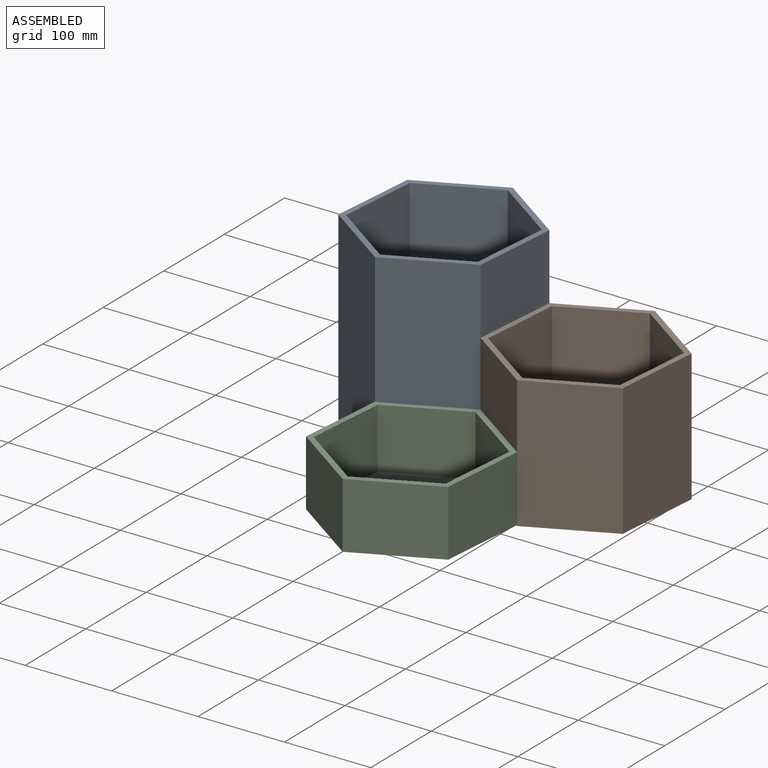
[diagram: assembled view]
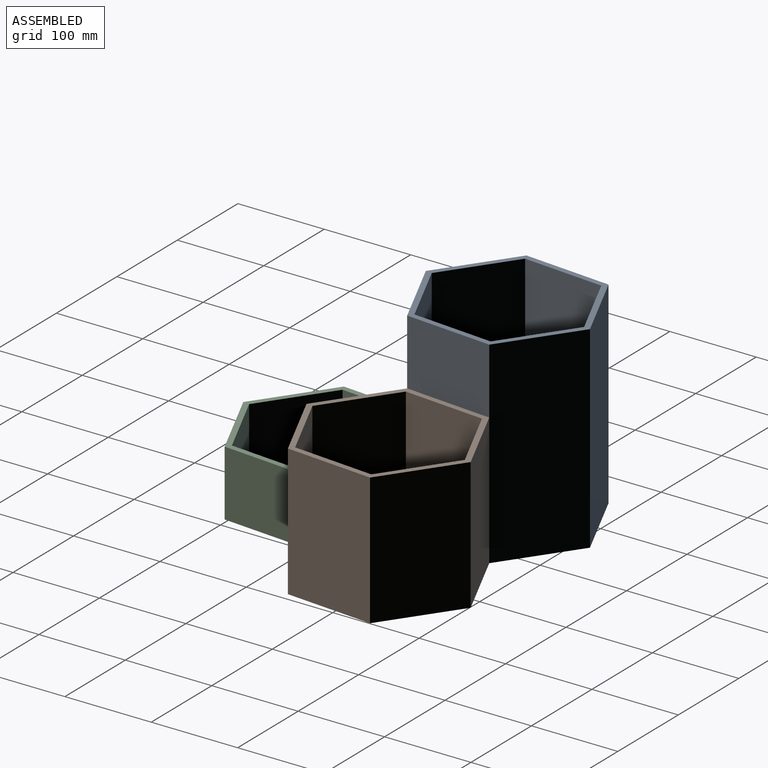
[diagram: assembled view, second angle]
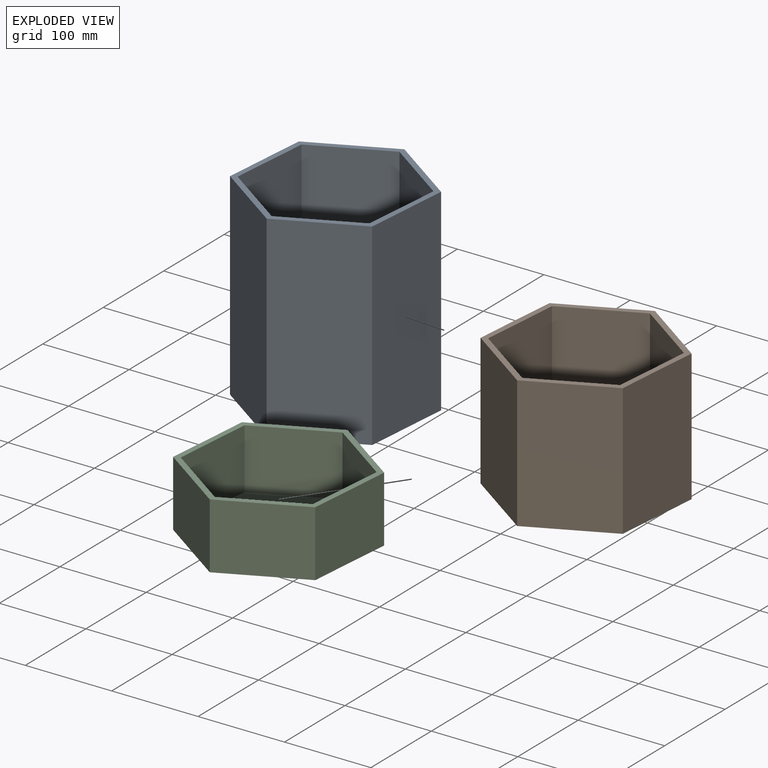
[diagram: exploded view]
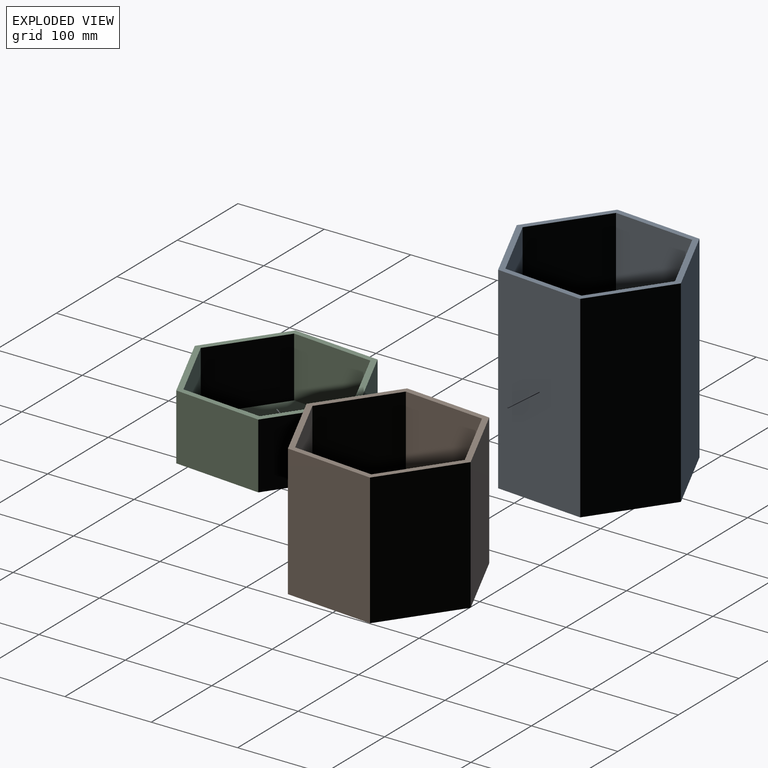
[diagram: exploded view, second angle]
ASSEMBLY  parts=3 mates=2
PART A: 15 faces, bbox 203.2x176x228.6 mm
  f0: plane 203.2x175.98mm, normal (0,0,1), area 3731.3mm2, adj f1,f2,f3,f4,f5,f6,f8,f9
  f1: plane 228.6x87.99mm, normal (-0.87,-0.5,0), area 23225.8mm2, adj f0,f2,f6,f7
  f2: plane 228.6x101.6mm, normal (0,-1,0), area 23225.8mm2, adj f0,f1,f3,f7
  f3: plane 228.6x87.99mm, normal (0.87,-0.5,0), area 23225.8mm2, adj f0,f2,f4,f7
  f4: plane 228.6x87.99mm, normal (0.87,0.5,0), area 23225.8mm2, adj f0,f3,f5,f7
  f5: plane 228.6x101.6mm, normal (0,1,0), area 23225.8mm2, adj f0,f4,f6,f7
  f6: plane 228.6x87.99mm, normal (-0.87,0.5,0), area 23225.8mm2, adj f0,f1,f5,f7
  f7: plane 203.2x175.98mm, normal (0,0,-1), area 26818.8mm2, adj f1,f2,f3,f4,f5,f6
  f8: plane 222.25x81.64mm, normal (0.87,0.5,0), area 20951mm2, adj f0,f9,f13,f14
  f9: plane 222.25x94.27mm, normal (0,1,0), area 20951mm2, adj f0,f8,f10,f14
  f10: plane 222.25x81.64mm, normal (-0.87,0.5,0), area 20951mm2, adj f0,f9,f11,f14
  f11: plane 222.25x81.64mm, normal (-0.87,-0.5,0), area 20951mm2, adj f0,f10,f12,f14
  f12: plane 222.25x94.27mm, normal (0,-1,0), area 20951mm2, adj f0,f11,f13,f14
  f13: plane 222.25x81.64mm, normal (0.87,-0.5,0), area 20951mm2, adj f0,f8,f12,f14
  f14: plane 188.54x163.28mm, normal (0,0,1), area 23087.5mm2, adj f8,f9,f10,f11,f12,f13
PART B: 15 faces, bbox 203.2x176x152.4 mm
  f0: plane 203.2x175.98mm, normal (0,0,1), area 3731.3mm2, adj f1,f2,f3,f4,f5,f6,f8,f9
  f1: plane 152.4x87.99mm, normal (-0.87,-0.5,0), area 15483.8mm2, adj f0,f2,f6,f7
  f2: plane 152.4x101.6mm, normal (0,-1,0), area 15483.8mm2, adj f0,f1,f3,f7
  f3: plane 152.4x87.99mm, normal (0.87,-0.5,0), area 15483.8mm2, adj f0,f2,f4,f7
  f4: plane 152.4x87.99mm, normal (0.87,0.5,0), area 15483.8mm2, adj f0,f3,f5,f7
  f5: plane 152.4x101.6mm, normal (0,1,0), area 15483.8mm2, adj f0,f4,f6,f7
  f6: plane 152.4x87.99mm, normal (-0.87,0.5,0), area 15483.8mm2, adj f0,f1,f5,f7
  f7: plane 203.2x175.98mm, normal (0,0,-1), area 26818.8mm2, adj f1,f2,f3,f4,f5,f6
  f8: plane 146.05x81.64mm, normal (0.87,0.5,0), area 13767.8mm2, adj f0,f9,f13,f14
  f9: plane 146.05x94.27mm, normal (0,1,0), area 13767.8mm2, adj f0,f8,f10,f14
  f10: plane 146.05x81.64mm, normal (-0.87,0.5,0), area 13767.8mm2, adj f0,f9,f11,f14
  f11: plane 146.05x81.64mm, normal (-0.87,-0.5,0), area 13767.8mm2, adj f0,f10,f12,f14
  f12: plane 146.05x94.27mm, normal (0,-1,0), area 13767.8mm2, adj f0,f11,f13,f14
  f13: plane 146.05x81.64mm, normal (0.87,-0.5,0), area 13767.8mm2, adj f0,f8,f12,f14
  f14: plane 188.54x163.28mm, normal (0,0,1), area 23087.5mm2, adj f8,f9,f10,f11,f12,f13
PART C: 15 faces, bbox 203.2x176x76.2 mm
  f0: plane 203.2x175.98mm, normal (0,0,1), area 3731.3mm2, adj f1,f2,f3,f4,f5,f6,f8,f9
  f1: plane 87.99x76.2mm, normal (-0.87,-0.5,0), area 7741.9mm2, adj f0,f2,f6,f7
  f2: plane 101.6x76.2mm, normal (0,-1,0), area 7741.9mm2, adj f0,f1,f3,f7
  f3: plane 87.99x76.2mm, normal (0.87,-0.5,0), area 7741.9mm2, adj f0,f2,f4,f7
  f4: plane 87.99x76.2mm, normal (0.87,0.5,0), area 7741.9mm2, adj f0,f3,f5,f7
  f5: plane 101.6x76.2mm, normal (0,1,0), area 7741.9mm2, adj f0,f4,f6,f7
  f6: plane 87.99x76.2mm, normal (-0.87,0.5,0), area 7741.9mm2, adj f0,f1,f5,f7
  f7: plane 203.2x175.98mm, normal (0,0,-1), area 26818.8mm2, adj f1,f2,f3,f4,f5,f6
  f8: plane 81.64x69.85mm, normal (0.87,0.5,0), area 6584.6mm2, adj f0,f9,f13,f14
  f9: plane 94.27x69.85mm, normal (0,1,0), area 6584.6mm2, adj f0,f8,f10,f14
  f10: plane 81.64x69.85mm, normal (-0.87,0.5,0), area 6584.6mm2, adj f0,f9,f11,f14
  f11: plane 81.64x69.85mm, normal (-0.87,-0.5,0), area 6584.6mm2, adj f0,f10,f12,f14
  f12: plane 94.27x69.85mm, normal (0,-1,0), area 6584.6mm2, adj f0,f11,f13,f14
  f13: plane 81.64x69.85mm, normal (0.87,-0.5,0), area 6584.6mm2, adj f0,f8,f12,f14
  f14: plane 188.54x163.28mm, normal (0,0,1), area 23087.5mm2, adj f8,f9,f10,f11,f12,f13
PLACE A rot(axis=(0,0,-1),35deg) t=(-253.32,125.36,0)mm
PLACE B rot(axis=(0,0,1),25deg) t=(-78.02,110.02,0)mm
PLACE C rot(axis=(0,0,-1),95deg) t=(-179.16,-33.98,0.97)mm
MATE planar B.f6 <-> A.f4  axis (-1,0.09,0) through (-165.67,117.69,76.2)mm
MATE planar C.f6 <-> B.f1  axis (0.57,0.82,0) through (-128.69,38.09,39.07)mm
